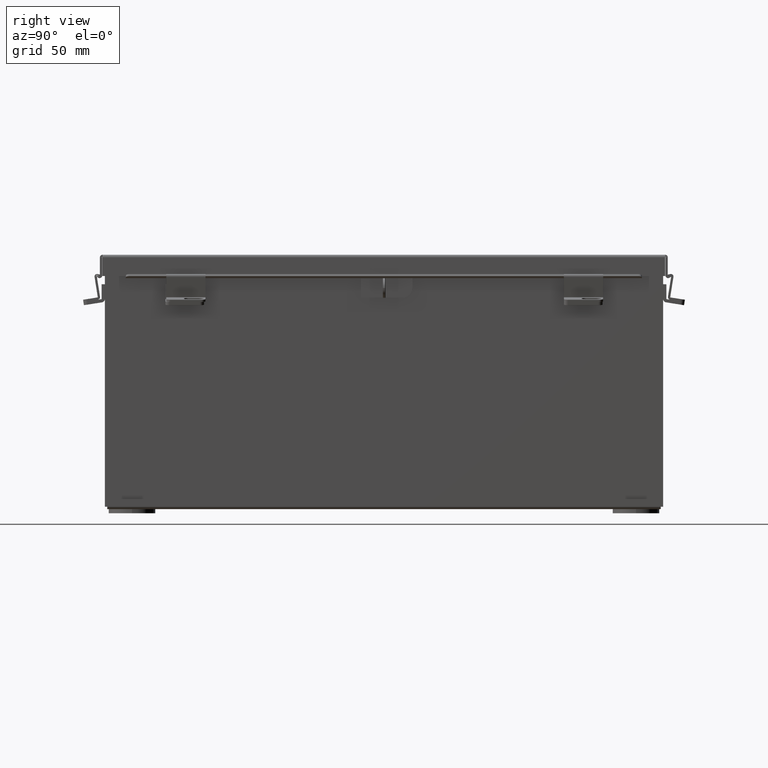
[diagram: clean part render]
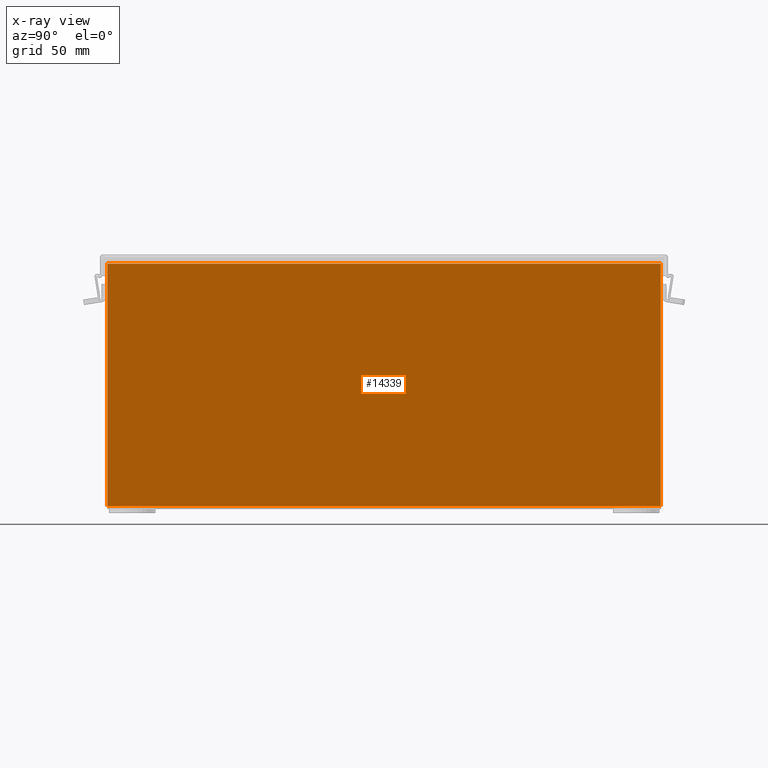
[diagram: x-ray — body ghosted, one internal face saturated and labeled with its STEP entity id]
A machine part, right view, then the same camera in x-ray: the body is ghosted and one INTERNAL B-rep face — a face not visible from any outside direction — is saturated and labeled: STEP entity #14339.
In plain terms, the highlighted planar face has unit normal (-1, 0, 0).
Its self-contained STEP definition (entity closure, byte-faithful):
#19 = LINE ( 'NONE', #8737, #18958 ) ;
#637 = AXIS2_PLACEMENT_3D ( 'NONE', #10620, #1734, #12109 ) ;
#786 = FACE_OUTER_BOUND ( 'NONE', #8504, .T. ) ;
#877 = ORIENTED_EDGE ( 'NONE', *, *, #15720, .F. ) ;
#1349 = ORIENTED_EDGE ( 'NONE', *, *, #9409, .F. ) ;
#1734 = DIRECTION ( 'NONE',  ( -1.000000000000000000, 0.0000000000000000000, 3.479795166820706300E-015 ) ) ;
#1932 = VECTOR ( 'NONE', #18463, 39.37007874015748100 ) ;
#2992 = LINE ( 'NONE', #16597, #6464 ) ;
#3776 = CARTESIAN_POINT ( 'NONE',  ( 3.925300000000027500, 8.925299999999998200, 7.837599999999999200 ) ) ;
#4543 = VERTEX_POINT ( 'NONE', #8804 ) ;
#6145 = DIRECTION ( 'NONE',  ( 0.0000000000000000000, 1.000000000000000000, 0.0000000000000000000 ) ) ;
#6382 = ORIENTED_EDGE ( 'NONE', *, *, #8509, .F. ) ;
#6464 = VECTOR ( 'NONE', #6145, 39.37007874015748100 ) ;
#6488 = CARTESIAN_POINT ( 'NONE',  ( 3.925300000000027100, 8.925299999999996500, 7.837599999999999200 ) ) ;
#7237 = VECTOR ( 'NONE', #9350, 39.37007874015748100 ) ;
#8504 = EDGE_LOOP ( 'NONE', ( #1349, #6382, #877, #11814 ) ) ;
#8509 = EDGE_CURVE ( 'NONE', #18816, #17647, #10294, .T. ) ;
#8737 = CARTESIAN_POINT ( 'NONE',  ( 3.925300000000027500, 8.925299999999998200, 7.850599999999999100 ) ) ;
#8804 = CARTESIAN_POINT ( 'NONE',  ( 3.925300000000000500, -8.925300000000001800, 0.01300000000000011600 ) ) ;
#9350 = DIRECTION ( 'NONE',  ( -3.479795166820706300E-015, -0.0000000000000000000, -1.000000000000000000 ) ) ;
#9409 = EDGE_CURVE ( 'NONE', #17647, #4543, #11187, .T. ) ;
#10249 = DIRECTION ( 'NONE',  ( 3.479795166820706300E-015, -1.391918066728282600E-016, 1.000000000000000000 ) ) ;
#10294 = LINE ( 'NONE', #6488, #1932 ) ;
#10620 = CARTESIAN_POINT ( 'NONE',  ( 3.925300000000000500, 0.0000000000000000000, -1.391535071772734100E-014 ) ) ;
#11187 = LINE ( 'NONE', #16810, #7237 ) ;
#11814 = ORIENTED_EDGE ( 'NONE', *, *, #17459, .F. ) ;
#12109 = DIRECTION ( 'NONE',  ( 3.479795166820706300E-015, 0.0000000000000000000, 1.000000000000000000 ) ) ;
#14106 = CARTESIAN_POINT ( 'NONE',  ( 3.925300000000000500, 8.925299999999998200, 0.01300000000000011600 ) ) ;
#14339 = ADVANCED_FACE ( 'NONE', ( #786 ), #16582, .T. ) ;
#15610 = CARTESIAN_POINT ( 'NONE',  ( 3.925300000000027100, -8.925300000000000000, 7.837599999999999200 ) ) ;
#15720 = EDGE_CURVE ( 'NONE', #16945, #18816, #19, .T. ) ;
#16582 = PLANE ( 'NONE',  #637 ) ;
#16597 = CARTESIAN_POINT ( 'NONE',  ( 3.925300000000000500, -8.925300000000001800, 0.01300000000000011600 ) ) ;
#16810 = CARTESIAN_POINT ( 'NONE',  ( 3.925300000000000500, -8.925300000000001800, 0.0000000000000000000 ) ) ;
#16945 = VERTEX_POINT ( 'NONE', #14106 ) ;
#17459 = EDGE_CURVE ( 'NONE', #4543, #16945, #2992, .T. ) ;
#17647 = VERTEX_POINT ( 'NONE', #15610 ) ;
#18463 = DIRECTION ( 'NONE',  ( -0.0000000000000000000, -1.000000000000000000, -0.0000000000000000000 ) ) ;
#18816 = VERTEX_POINT ( 'NONE', #3776 ) ;
#18958 = VECTOR ( 'NONE', #10249, 39.37007874015748100 ) ;